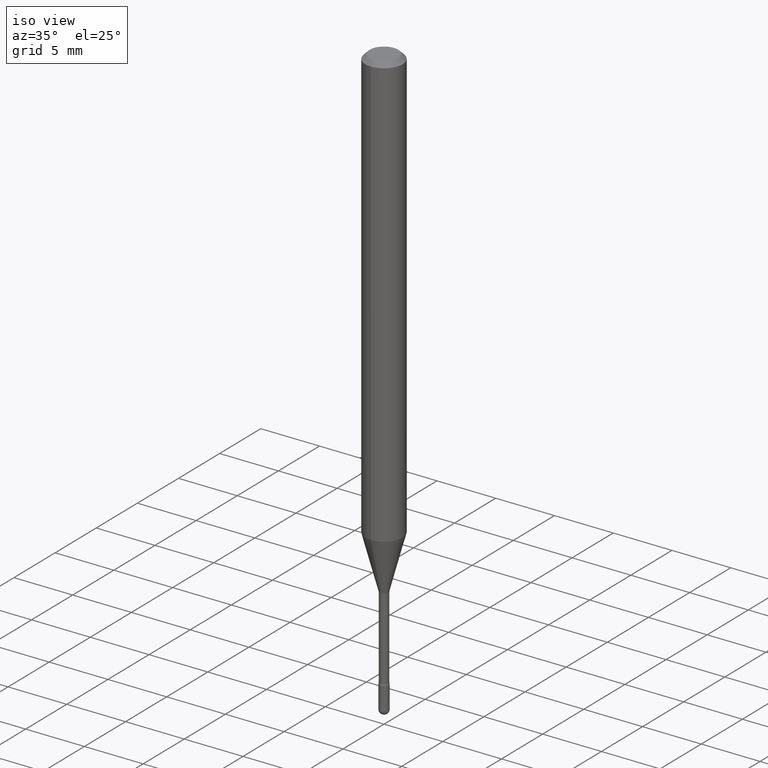
[diagram: clean part render]
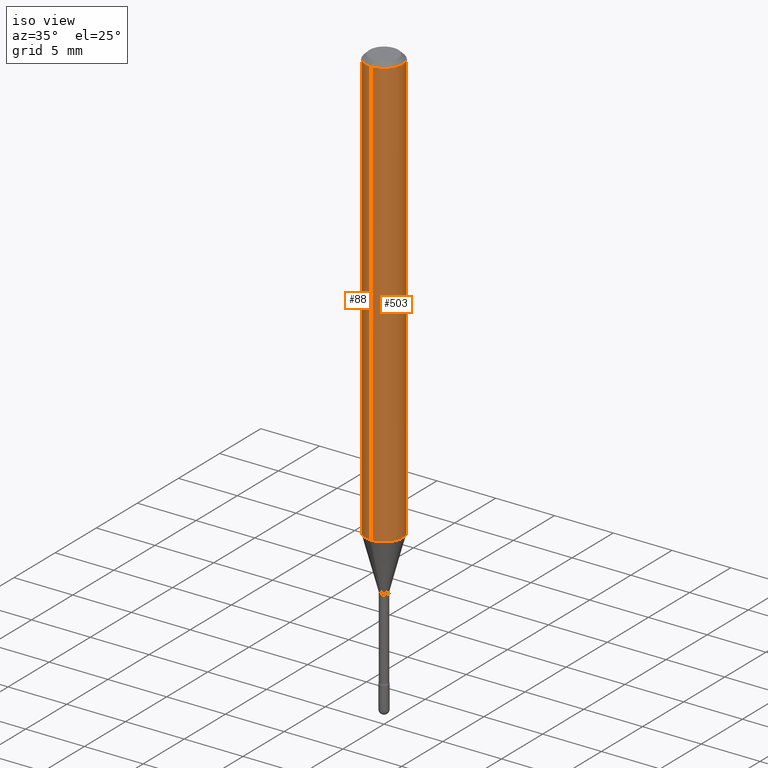
[diagram: same view with one multi-face feature highlighted, each face labeled with its STEP entity id]
A machine part, iso view. The highlighted faces form ONE feature: a constant-radius fillet chain: 2 tangent blend faces with common blend radius 1.5875 mm. The faces share edges in the B-rep.
Their STEP definitions:
[1] entity #503 (Cylinder):
#2 = VERTEX_POINT ( 'NONE', #214 ) ;
#9 = DIRECTION ( 'NONE',  ( -6.982962677686265922E-15, -1.000000000000000000, 3.491488494413426831E-15 ) ) ;
#10 = CARTESIAN_POINT ( 'NONE',  ( 4.440892098500978191E-16, 0.06249999999999492073, -1.449048163777072906 ) ) ;
#34 = LINE ( 'NONE', #496, #43 ) ;
#43 = VECTOR ( 'NONE', #371, 39.37007874015748143 ) ;
#73 = CARTESIAN_POINT ( 'NONE',  ( 3.668195714215692783E-31, -5.237232741620169829E-17, -0.01500000000000008271 ) ) ;
#75 = VERTEX_POINT ( 'NONE', #10 ) ;
#106 = VECTOR ( 'NONE', #398, 39.37007874015748143 ) ;
#114 = CARTESIAN_POINT ( 'NONE',  ( -4.364351673553563186E-16, -0.06250000000000507927, -1.449048163777072240 ) ) ;
#129 = CYLINDRICAL_SURFACE ( 'NONE', #517, 0.06250000000000000000 ) ;
#131 = DIRECTION ( 'NONE',  ( -6.982962677686265922E-15, -1.000000000000000000, 4.370956789862821150E-15 ) ) ;
#136 = DIRECTION ( 'NONE',  ( -2.445463809477115105E-29, 3.491488494413427226E-15, 1.000000000000000000 ) ) ;
#141 = EDGE_CURVE ( 'NONE', #75, #2, #201, .T. ) ;
#146 = CIRCLE ( 'NONE', #271, 0.06250000000000000000 ) ;
#160 = VERTEX_POINT ( 'NONE', #114 ) ;
#163 = EDGE_CURVE ( 'NONE', #174, #2, #146, .T. ) ;
#174 = VERTEX_POINT ( 'NONE', #379 ) ;
#180 = EDGE_LOOP ( 'NONE', ( #551, #298, #467, #222 ) ) ;
#201 = LINE ( 'NONE', #239, #106 ) ;
#214 = CARTESIAN_POINT ( 'NONE',  ( 4.440892098500983121E-16, 0.06249999999999995143, -0.01500000000000030129 ) ) ;
#222 = ORIENTED_EDGE ( 'NONE', *, *, #372, .F. ) ;
#239 = CARTESIAN_POINT ( 'NONE',  ( 4.440892098500625669E-16, 0.06250000000000000000, 2.598553679904068616E-16 ) ) ;
#246 = DIRECTION ( 'NONE',  ( -2.445463809477115105E-29, 3.491488494413427226E-15, 1.000000000000000000 ) ) ;
#260 = DIRECTION ( 'NONE',  ( -2.445463809477115105E-29, 3.491488494413427226E-15, 1.000000000000000000 ) ) ;
#271 = AXIS2_PLACEMENT_3D ( 'NONE', #73, #246, #465 ) ;
#298 = ORIENTED_EDGE ( 'NONE', *, *, #141, .T. ) ;
#301 = CARTESIAN_POINT ( 'NONE',  ( 3.543594842706099402E-29, -5.059334991678553225E-15, -1.449048163777072684 ) ) ;
#343 = FACE_OUTER_BOUND ( 'NONE', #180, .T. ) ;
#371 = DIRECTION ( 'NONE',  ( -2.445463809477115105E-29, 3.491488494413427620E-15, 1.000000000000000000 ) ) ;
#372 = EDGE_CURVE ( 'NONE', #160, #174, #34, .T. ) ;
#379 = CARTESIAN_POINT ( 'NONE',  ( -4.364351673553912750E-16, -0.06250000000000005551, -0.01499999999999986587 ) ) ;
#383 = CARTESIAN_POINT ( 'NONE',  ( -1.169113584055446105E-44, 1.669184350826100908E-30, 4.780733988912460139E-16 ) ) ;
#398 = DIRECTION ( 'NONE',  ( -2.445463809477115105E-29, 3.491488494413427620E-15, 1.000000000000000000 ) ) ;
#433 = EDGE_CURVE ( 'NONE', #160, #75, #441, .T. ) ;
#441 = CIRCLE ( 'NONE', #526, 0.06250000000000000000 ) ;
#465 = DIRECTION ( 'NONE',  ( -6.982962677686265922E-15, -1.000000000000000000, 3.483106191921935554E-15 ) ) ;
#467 = ORIENTED_EDGE ( 'NONE', *, *, #163, .F. ) ;
#496 = CARTESIAN_POINT ( 'NONE',  ( -4.364351673553916201E-16, -0.06250000000000000000, 6.962914297920852155E-16 ) ) ;
#503 = ADVANCED_FACE ( 'NONE', ( #343 ), #129, .T. ) ;
#517 = AXIS2_PLACEMENT_3D ( 'NONE', #383, #136, #9 ) ;
#526 = AXIS2_PLACEMENT_3D ( 'NONE', #301, #260, #131 ) ;
#551 = ORIENTED_EDGE ( 'NONE', *, *, #433, .T. ) ;
[2] entity #88 (Cylinder):
#2 = VERTEX_POINT ( 'NONE', #214 ) ;
#10 = CARTESIAN_POINT ( 'NONE',  ( 4.440892098500978191E-16, 0.06249999999999492073, -1.449048163777072906 ) ) ;
#34 = LINE ( 'NONE', #496, #43 ) ;
#43 = VECTOR ( 'NONE', #371, 39.37007874015748143 ) ;
#46 = ORIENTED_EDGE ( 'NONE', *, *, #141, .F. ) ;
#57 = CIRCLE ( 'NONE', #333, 0.06250000000000000000 ) ;
#75 = VERTEX_POINT ( 'NONE', #10 ) ;
#88 = ADVANCED_FACE ( 'NONE', ( #535 ), #188, .T. ) ;
#93 = DIRECTION ( 'NONE',  ( -6.982962677686265922E-15, -1.000000000000000000, 4.370956789862821150E-15 ) ) ;
#103 = DIRECTION ( 'NONE',  ( -2.445463809477115105E-29, 3.491488494413427226E-15, 1.000000000000000000 ) ) ;
#106 = VECTOR ( 'NONE', #398, 39.37007874015748143 ) ;
#114 = CARTESIAN_POINT ( 'NONE',  ( -4.364351673553563186E-16, -0.06250000000000507927, -1.449048163777072240 ) ) ;
#128 = ORIENTED_EDGE ( 'NONE', *, *, #372, .T. ) ;
#141 = EDGE_CURVE ( 'NONE', #75, #2, #201, .T. ) ;
#147 = DIRECTION ( 'NONE',  ( -2.445463809477115105E-29, 3.491488494413427226E-15, 1.000000000000000000 ) ) ;
#160 = VERTEX_POINT ( 'NONE', #114 ) ;
#174 = VERTEX_POINT ( 'NONE', #379 ) ;
#183 = AXIS2_PLACEMENT_3D ( 'NONE', #279, #103, #312 ) ;
#188 = CYLINDRICAL_SURFACE ( 'NONE', #470, 0.06250000000000000000 ) ;
#190 = EDGE_CURVE ( 'NONE', #75, #160, #57, .T. ) ;
#201 = LINE ( 'NONE', #239, #106 ) ;
#214 = CARTESIAN_POINT ( 'NONE',  ( 4.440892098500983121E-16, 0.06249999999999995143, -0.01500000000000030129 ) ) ;
#239 = CARTESIAN_POINT ( 'NONE',  ( 4.440892098500625669E-16, 0.06250000000000000000, 2.598553679904068616E-16 ) ) ;
#267 = CARTESIAN_POINT ( 'NONE',  ( 3.543594842706099402E-29, -5.059334991678553225E-15, -1.449048163777072684 ) ) ;
#279 = CARTESIAN_POINT ( 'NONE',  ( 3.668195714215692783E-31, -5.237232741620169829E-17, -0.01500000000000008271 ) ) ;
#312 = DIRECTION ( 'NONE',  ( -6.982962677686265922E-15, -1.000000000000000000, 3.483106191921935554E-15 ) ) ;
#326 = EDGE_LOOP ( 'NONE', ( #46, #469, #128, #410 ) ) ;
#333 = AXIS2_PLACEMENT_3D ( 'NONE', #267, #147, #93 ) ;
#349 = DIRECTION ( 'NONE',  ( -6.982962677686265922E-15, -1.000000000000000000, 3.491488494413426831E-15 ) ) ;
#352 = DIRECTION ( 'NONE',  ( -2.445463809477115105E-29, 3.491488494413427226E-15, 1.000000000000000000 ) ) ;
#353 = EDGE_CURVE ( 'NONE', #2, #174, #539, .T. ) ;
#371 = DIRECTION ( 'NONE',  ( -2.445463809477115105E-29, 3.491488494413427620E-15, 1.000000000000000000 ) ) ;
#372 = EDGE_CURVE ( 'NONE', #160, #174, #34, .T. ) ;
#379 = CARTESIAN_POINT ( 'NONE',  ( -4.364351673553912750E-16, -0.06250000000000005551, -0.01499999999999986587 ) ) ;
#398 = DIRECTION ( 'NONE',  ( -2.445463809477115105E-29, 3.491488494413427620E-15, 1.000000000000000000 ) ) ;
#410 = ORIENTED_EDGE ( 'NONE', *, *, #353, .F. ) ;
#469 = ORIENTED_EDGE ( 'NONE', *, *, #190, .T. ) ;
#470 = AXIS2_PLACEMENT_3D ( 'NONE', #472, #352, #349 ) ;
#472 = CARTESIAN_POINT ( 'NONE',  ( -1.169113584055446105E-44, 1.669184350826100908E-30, 4.780733988912460139E-16 ) ) ;
#496 = CARTESIAN_POINT ( 'NONE',  ( -4.364351673553916201E-16, -0.06250000000000000000, 6.962914297920852155E-16 ) ) ;
#535 = FACE_OUTER_BOUND ( 'NONE', #326, .T. ) ;
#539 = CIRCLE ( 'NONE', #183, 0.06250000000000000000 ) ;